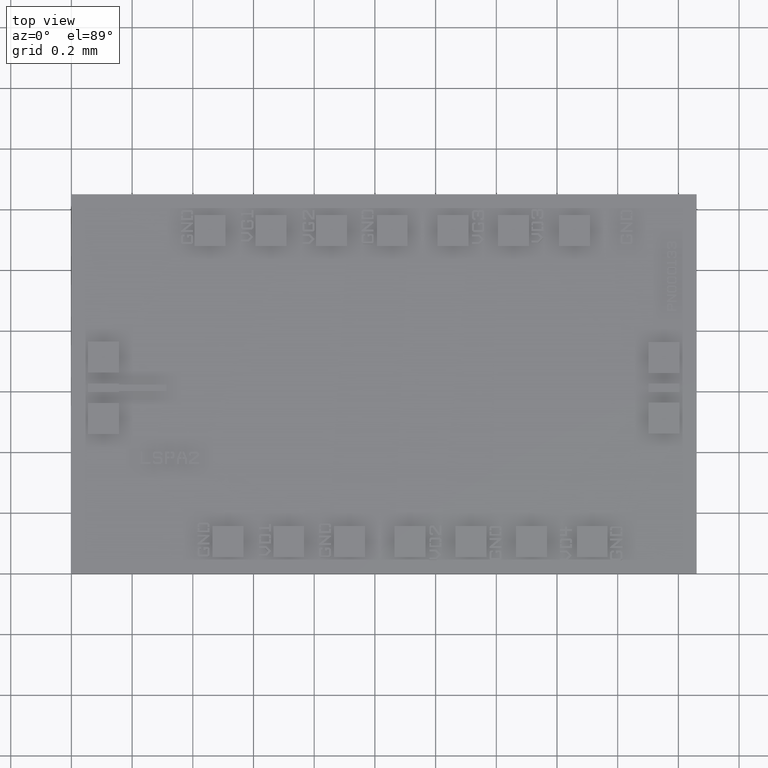
[diagram: clean part render]
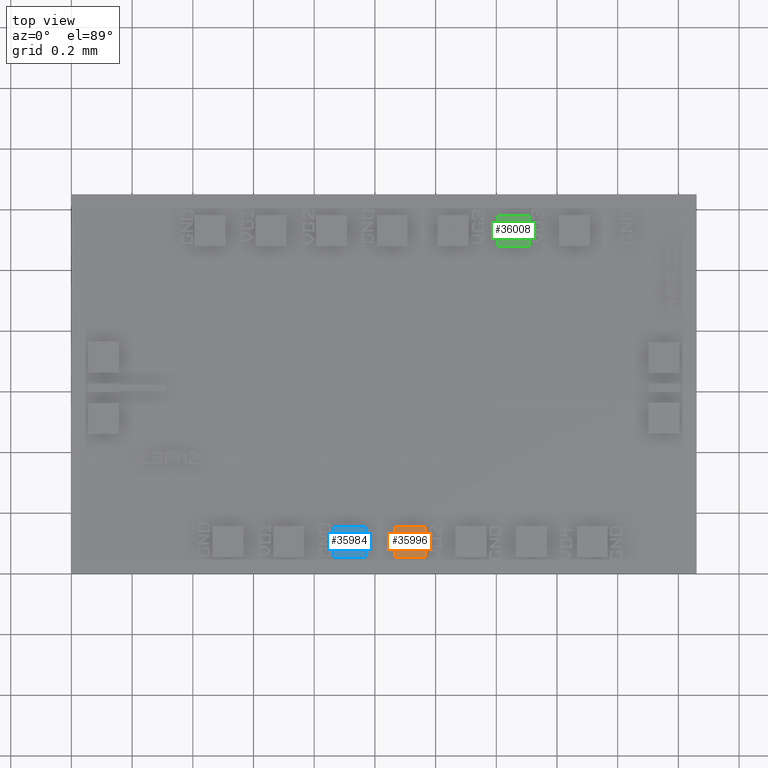
[diagram: same view with three faces highlighted in distinct colors, each labeled with its STEP entity id]
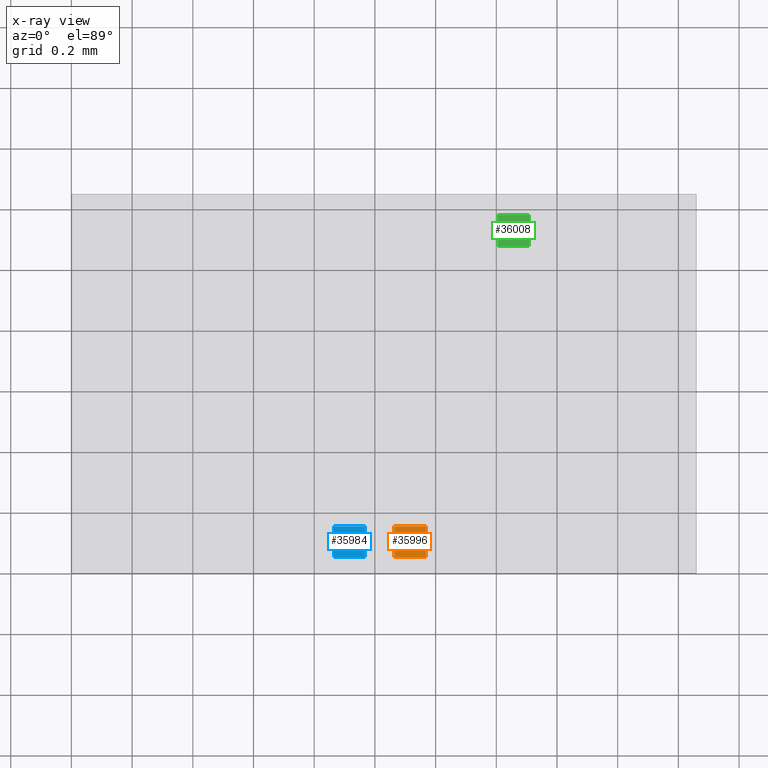
[diagram: x-ray of the same camera — body ghosted, the three highlighted faces saturated]
A machine part, top view with three faces highlighted in distinct colors.
The next image is the same camera in x-ray (body ghosted, the three faces saturated) — at least one of them is partly hidden behind the body in this view.
Their STEP definitions:

[orange] entity #35996 — the highlighted planar face has unit normal (0, 0, 1).
#561=CARTESIAN_POINT('',(0.045944881889764,0.006122047244094,0.001968503937008));
#562=VERTEX_POINT('',#561);
#569=CARTESIAN_POINT('',(0.045944881889764,0.002106299212598,0.001968503937008));
#570=VERTEX_POINT('',#569);
#571=CARTESIAN_POINT('',(0.045944881889764,0.002106299212598,0.001968503937008));
#572=DIRECTION('',(0.0,1.0,0.0));
#573=VECTOR('',#572,0.004015748031496);
#574=LINE('',#571,#573);
#575=EDGE_CURVE('',#570,#562,#574,.T.);
#599=CARTESIAN_POINT('',(0.041929133858268,0.006122047244094,0.001968503937008));
#600=VERTEX_POINT('',#599);
#607=CARTESIAN_POINT('',(0.045944881889764,0.006122047244094,0.001968503937008));
#608=DIRECTION('',(-1.0,0.0,0.0));
#609=VECTOR('',#608,0.004015748031496);
#610=LINE('',#607,#609);
#611=EDGE_CURVE('',#562,#600,#610,.T.);
#630=CARTESIAN_POINT('',(0.041929133858268,0.002106299212598,0.001968503937008));
#631=VERTEX_POINT('',#630);
#638=CARTESIAN_POINT('',(0.041929133858268,0.006122047244094,0.001968503937008));
#639=DIRECTION('',(0.0,-1.0,0.0));
#640=VECTOR('',#639,0.004015748031496);
#641=LINE('',#638,#640);
#642=EDGE_CURVE('',#600,#631,#641,.T.);
#660=CARTESIAN_POINT('',(0.041929133858268,0.002106299212598,0.001968503937008));
#661=DIRECTION('',(1.0,0.0,0.0));
#662=VECTOR('',#661,0.004015748031496);
#663=LINE('',#660,#662);
#664=EDGE_CURVE('',#631,#570,#663,.T.);
#35985=CARTESIAN_POINT('',(0.040551181102362,0.024606299212598,0.001968503937008));
#35986=DIRECTION('',(0.0,0.0,1.0));
#35987=DIRECTION('',(1.0,0.0,0.0));
#35988=AXIS2_PLACEMENT_3D('',#35985,#35986,#35987);
#35989=PLANE('',#35988);
#35990=ORIENTED_EDGE('',*,*,#575,.T.);
#35991=ORIENTED_EDGE('',*,*,#611,.T.);
#35992=ORIENTED_EDGE('',*,*,#642,.T.);
#35993=ORIENTED_EDGE('',*,*,#664,.T.);
#35994=EDGE_LOOP('',(#35990,#35991,#35992,#35993));
#35995=FACE_OUTER_BOUND('',#35994,.T.);
#35996=ADVANCED_FACE('',(#35995),#35989,.T.);

[blue] entity #35984 — the highlighted planar face has unit normal (0, 0, 1).
#685=CARTESIAN_POINT('',(0.038070866141732,0.006122047244094,0.001968503937008));
#686=VERTEX_POINT('',#685);
#693=CARTESIAN_POINT('',(0.038070866141732,0.002106299212598,0.001968503937008));
#694=VERTEX_POINT('',#693);
#695=CARTESIAN_POINT('',(0.038070866141732,0.002106299212598,0.001968503937008));
#696=DIRECTION('',(0.0,1.0,0.0));
#697=VECTOR('',#696,0.004015748031496);
#698=LINE('',#695,#697);
#699=EDGE_CURVE('',#694,#686,#698,.T.);
#723=CARTESIAN_POINT('',(0.034055118110236,0.006122047244094,0.001968503937008));
#724=VERTEX_POINT('',#723);
#731=CARTESIAN_POINT('',(0.038070866141732,0.006122047244094,0.001968503937008));
#732=DIRECTION('',(-1.0,0.0,0.0));
#733=VECTOR('',#732,0.004015748031496);
#734=LINE('',#731,#733);
#735=EDGE_CURVE('',#686,#724,#734,.T.);
#754=CARTESIAN_POINT('',(0.034055118110236,0.002106299212598,0.001968503937008));
#755=VERTEX_POINT('',#754);
#762=CARTESIAN_POINT('',(0.034055118110236,0.006122047244094,0.001968503937008));
#763=DIRECTION('',(0.0,-1.0,0.0));
#764=VECTOR('',#763,0.004015748031496);
#765=LINE('',#762,#764);
#766=EDGE_CURVE('',#724,#755,#765,.T.);
#784=CARTESIAN_POINT('',(0.034055118110236,0.002106299212598,0.001968503937008));
#785=DIRECTION('',(1.0,0.0,0.0));
#786=VECTOR('',#785,0.004015748031496);
#787=LINE('',#784,#786);
#788=EDGE_CURVE('',#755,#694,#787,.T.);
#35973=CARTESIAN_POINT('',(0.040551181102362,0.024606299212598,0.001968503937008));
#35974=DIRECTION('',(0.0,0.0,1.0));
#35975=DIRECTION('',(1.0,0.0,0.0));
#35976=AXIS2_PLACEMENT_3D('',#35973,#35974,#35975);
#35977=PLANE('',#35976);
#35978=ORIENTED_EDGE('',*,*,#699,.T.);
#35979=ORIENTED_EDGE('',*,*,#735,.T.);
#35980=ORIENTED_EDGE('',*,*,#766,.T.);
#35981=ORIENTED_EDGE('',*,*,#788,.T.);
#35982=EDGE_LOOP('',(#35978,#35979,#35980,#35981));
#35983=FACE_OUTER_BOUND('',#35982,.T.);
#35984=ADVANCED_FACE('',(#35983),#35977,.T.);

[green] entity #36008 — the highlighted planar face has unit normal (0, 0, 1).
#437=CARTESIAN_POINT('',(0.059370078740157,0.046496062992126,0.001968503937008));
#438=VERTEX_POINT('',#437);
#445=CARTESIAN_POINT('',(0.059370078740157,0.042480314960630,0.001968503937008));
#446=VERTEX_POINT('',#445);
#447=CARTESIAN_POINT('',(0.059370078740157,0.042480314960630,0.001968503937008));
#448=DIRECTION('',(0.0,1.0,0.0));
#449=VECTOR('',#448,0.004015748031496);
#450=LINE('',#447,#449);
#451=EDGE_CURVE('',#446,#438,#450,.T.);
#475=CARTESIAN_POINT('',(0.055354330708661,0.046496062992126,0.001968503937008));
#476=VERTEX_POINT('',#475);
#483=CARTESIAN_POINT('',(0.059370078740157,0.046496062992126,0.001968503937008));
#484=DIRECTION('',(-1.0,0.0,0.0));
#485=VECTOR('',#484,0.004015748031496);
#486=LINE('',#483,#485);
#487=EDGE_CURVE('',#438,#476,#486,.T.);
#506=CARTESIAN_POINT('',(0.055354330708661,0.042480314960630,0.001968503937008));
#507=VERTEX_POINT('',#506);
#514=CARTESIAN_POINT('',(0.055354330708661,0.046496062992126,0.001968503937008));
#515=DIRECTION('',(0.0,-1.0,0.0));
#516=VECTOR('',#515,0.004015748031496);
#517=LINE('',#514,#516);
#518=EDGE_CURVE('',#476,#507,#517,.T.);
#536=CARTESIAN_POINT('',(0.055354330708661,0.042480314960630,0.001968503937008));
#537=DIRECTION('',(1.0,0.0,0.0));
#538=VECTOR('',#537,0.004015748031496);
#539=LINE('',#536,#538);
#540=EDGE_CURVE('',#507,#446,#539,.T.);
#35997=CARTESIAN_POINT('',(0.040551181102362,0.024606299212598,0.001968503937008));
#35998=DIRECTION('',(0.0,0.0,1.0));
#35999=DIRECTION('',(1.0,0.0,0.0));
#36000=AXIS2_PLACEMENT_3D('',#35997,#35998,#35999);
#36001=PLANE('',#36000);
#36002=ORIENTED_EDGE('',*,*,#451,.T.);
#36003=ORIENTED_EDGE('',*,*,#487,.T.);
#36004=ORIENTED_EDGE('',*,*,#518,.T.);
#36005=ORIENTED_EDGE('',*,*,#540,.T.);
#36006=EDGE_LOOP('',(#36002,#36003,#36004,#36005));
#36007=FACE_OUTER_BOUND('',#36006,.T.);
#36008=ADVANCED_FACE('',(#36007),#36001,.T.);